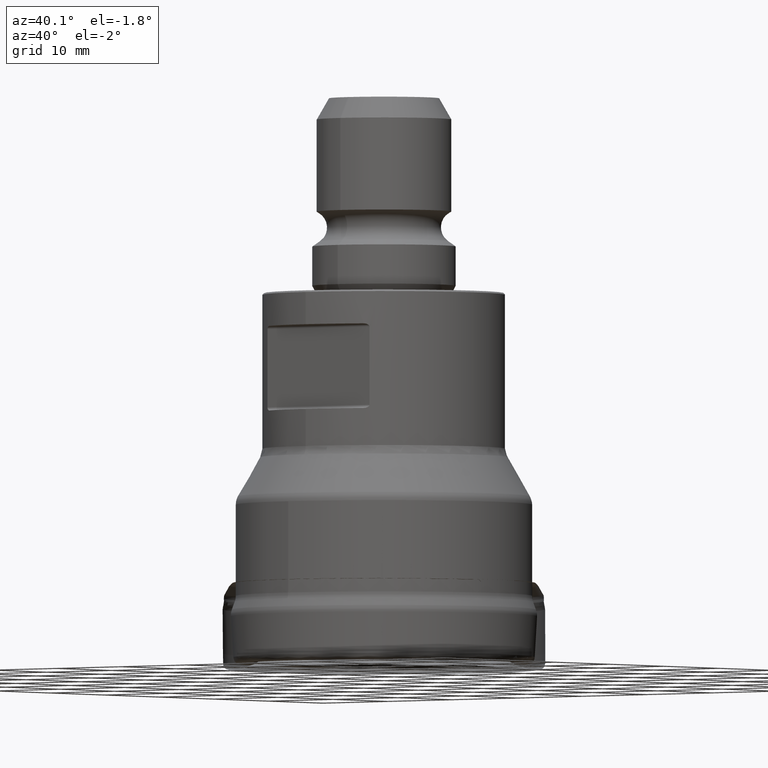
[diagram: clean part render]
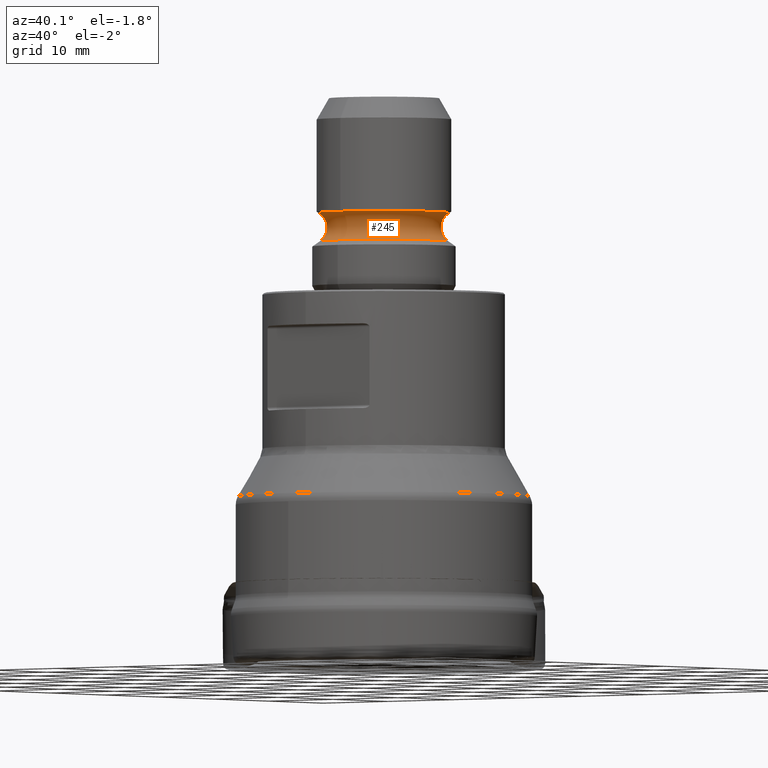
[diagram: same view with one face highlighted and labeled with its STEP entity id]
A machine part, auxiliary view. The second image highlights one B-rep face of the part: STEP entity #245.
In plain terms, the highlighted toroidal blend (fillet) surface has major radius 8.75 mm and minor (blend) radius 2 mm.
Its self-contained STEP definition (entity closure, byte-faithful):
#171=TOROIDAL_SURFACE('',#1006,8.75,2.00000000000001);
#245=ADVANCED_FACE('',(#336,#337),#171,.F.);
#336=FACE_BOUND('',#450,.T.);
#337=FACE_BOUND('',#451,.T.);
#450=EDGE_LOOP('',(#586));
#451=EDGE_LOOP('',(#587));
#586=ORIENTED_EDGE('',*,*,#812,.F.);
#587=ORIENTED_EDGE('',*,*,#811,.T.);
#738=VERTEX_POINT('',#1765);
#739=VERTEX_POINT('',#1768);
#811=EDGE_CURVE('',#738,#738,#878,.T.);
#812=EDGE_CURVE('',#739,#739,#879,.T.);
#878=CIRCLE('',#1003,7.60284712729791);
#879=CIRCLE('',#1005,7.74999999999999);
#1003=AXIS2_PLACEMENT_3D('',#1764,#1146,#1147);
#1005=AXIS2_PLACEMENT_3D('',#1767,#1150,#1151);
#1006=AXIS2_PLACEMENT_3D('',#1769,#1152,#1153);
#1146=DIRECTION('',(0.,1.17145536458252E-15,1.));
#1147=DIRECTION('',(0.,-1.,9.12670449336438E-16));
#1150=DIRECTION('',(0.,1.17145536458252E-15,1.));
#1151=DIRECTION('',(0.,-1.,8.95341148891256E-16));
#1152=DIRECTION('',(0.,1.17145536458252E-15,1.));
#1153=DIRECTION('',(0.,-1.,1.29095700537809E-15));
#1764=CARTESIAN_POINT('',(0.,5.92500957601769E-14,50.5781932043925));
#1765=CARTESIAN_POINT('',(0.,-7.60284712729785,50.5781932043925));
#1767=CARTESIAN_POINT('',(0.,6.31983160838152E-14,53.9485481005394));
#1768=CARTESIAN_POINT('',(0.,-7.74999999999993,53.9485481005394));
#1769=CARTESIAN_POINT('',(0.,6.11692958735591E-14,52.2164972929705));